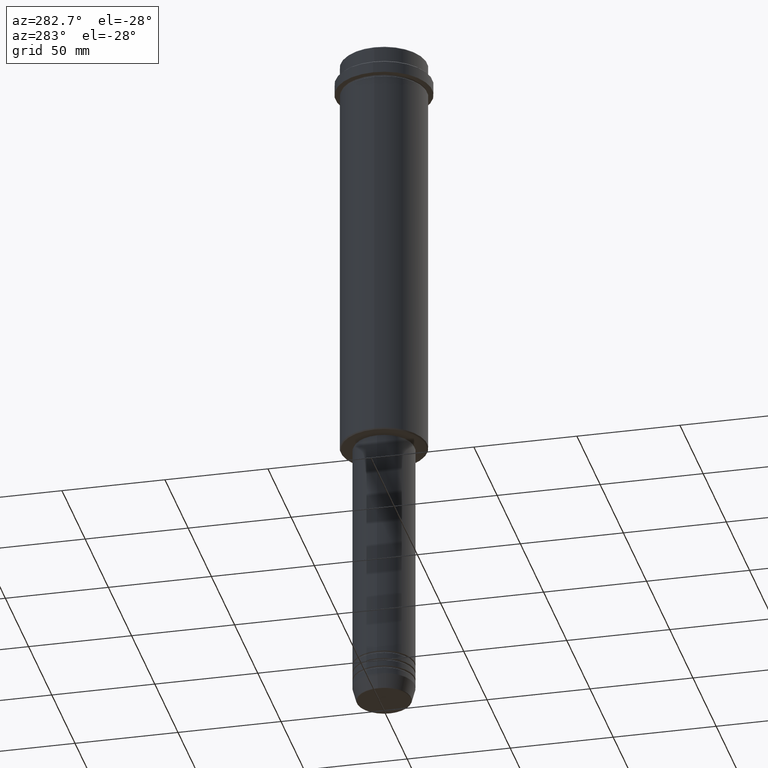
[diagram: clean part render]
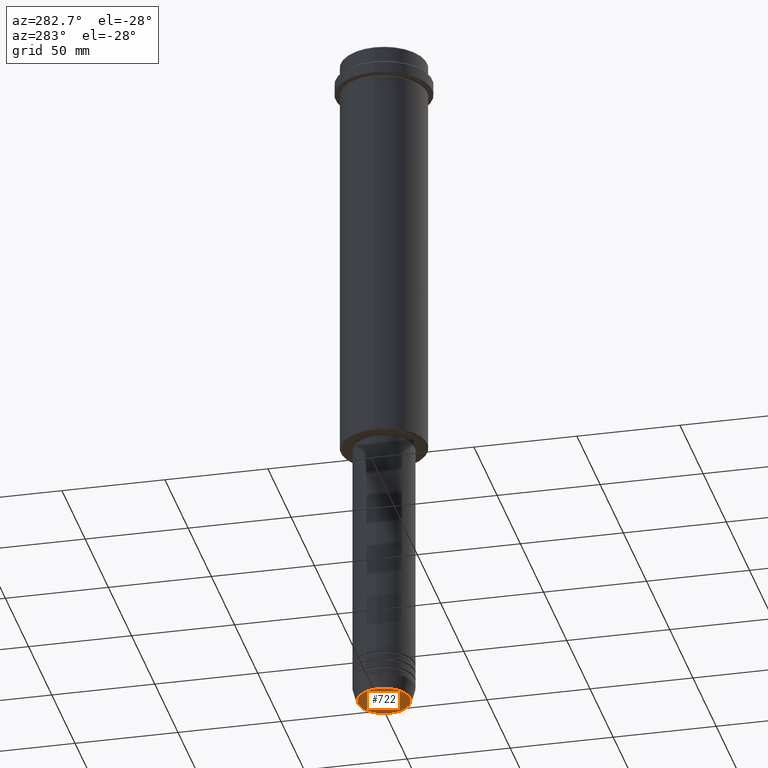
[diagram: same view with one face highlighted and labeled with its STEP entity id]
A machine part, auxiliary view. The second image highlights one B-rep face of the part: STEP entity #722.
In plain terms, the highlighted planar face has unit normal (0, -0, 1).
Its self-contained STEP definition (entity closure, byte-faithful):
#51 = DIRECTION ( 'NONE',  ( 1.000000000000000000, 0.000000000000000000, 0.000000000000000000 ) ) ;
#264 = AXIS2_PLACEMENT_3D ( 'NONE', #817, #1145, #929 ) ;
#284 = VERTEX_POINT ( 'NONE', #1404 ) ;
#404 = ORIENTED_EDGE ( 'NONE', *, *, #837, .T. ) ;
#467 = CIRCLE ( 'NONE', #590, 12.74069215899265828 ) ;
#473 = DIRECTION ( 'NONE',  ( 1.000000000000000000, 0.000000000000000000, 0.000000000000000000 ) ) ;
#590 = AXIS2_PLACEMENT_3D ( 'NONE', #1266, #703, #51 ) ;
#647 = VERTEX_POINT ( 'NONE', #1403 ) ;
#703 = DIRECTION ( 'NONE',  ( 0.000000000000000000, 0.000000000000000000, -1.000000000000000000 ) ) ;
#720 = FACE_OUTER_BOUND ( 'NONE', #1365, .T. ) ;
#722 = ADVANCED_FACE ( 'NONE', ( #720 ), #821, .F. ) ;
#817 = CARTESIAN_POINT ( 'NONE',  ( 0.000000000000000000, 0.000000000000000000, -340.0000000000000000 ) ) ;
#821 = PLANE ( 'NONE',  #1302 ) ;
#837 = EDGE_CURVE ( 'NONE', #284, #647, #467, .T. ) ;
#845 = ORIENTED_EDGE ( 'NONE', *, *, #1174, .T. ) ;
#929 = DIRECTION ( 'NONE',  ( 1.000000000000000000, 0.000000000000000000, 0.000000000000000000 ) ) ;
#1047 = DIRECTION ( 'NONE',  ( 0.000000000000000000, -0.000000000000000000, 1.000000000000000000 ) ) ;
#1139 = CARTESIAN_POINT ( 'NONE',  ( 0.000000000000000000, 0.000000000000000000, -340.0000000000000000 ) ) ;
#1145 = DIRECTION ( 'NONE',  ( 0.000000000000000000, 0.000000000000000000, -1.000000000000000000 ) ) ;
#1174 = EDGE_CURVE ( 'NONE', #647, #284, #1241, .T. ) ;
#1241 = CIRCLE ( 'NONE', #264, 12.74069215899265828 ) ;
#1266 = CARTESIAN_POINT ( 'NONE',  ( 0.000000000000000000, 0.000000000000000000, -340.0000000000000000 ) ) ;
#1302 = AXIS2_PLACEMENT_3D ( 'NONE', #1139, #1047, #473 ) ;
#1365 = EDGE_LOOP ( 'NONE', ( #404, #845 ) ) ;
#1403 = CARTESIAN_POINT ( 'NONE',  ( -12.74069215899265828, 1.589857736427680246E-15, -340.0000000000000000 ) ) ;
#1404 = CARTESIAN_POINT ( 'NONE',  ( 12.74069215899265828, 0.000000000000000000, -340.0000000000000000 ) ) ;